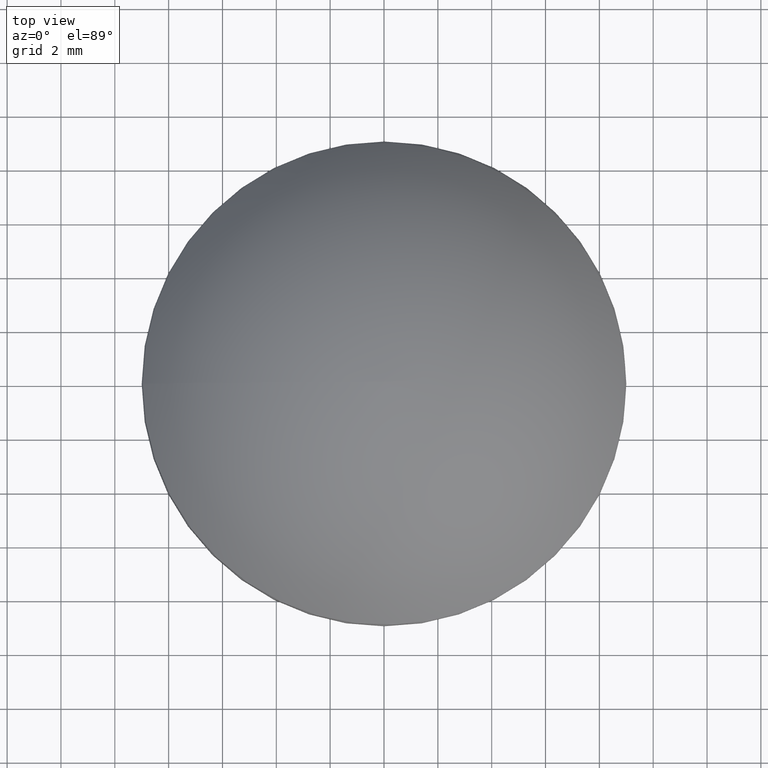
[diagram: clean part render]
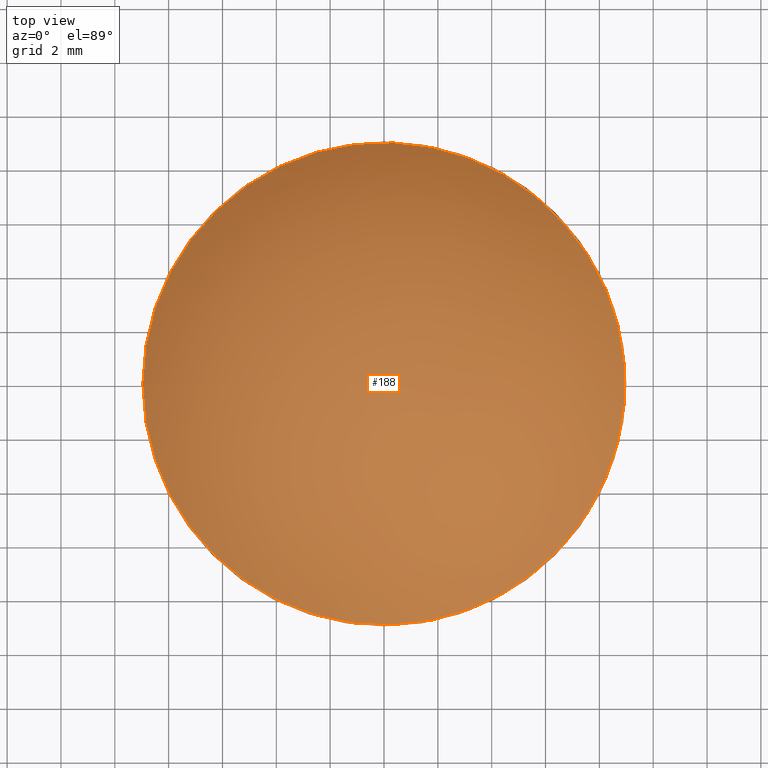
[diagram: same view with one face highlighted and labeled with its STEP entity id]
A machine part, top view. The second image highlights one B-rep face of the part: STEP entity #188.
In plain terms, the highlighted spherical surface has radius 11.5 mm.
Its self-contained STEP definition (entity closure, byte-faithful):
#16=SPHERICAL_SURFACE('',#236,11.5);
#40=FACE_OUTER_BOUND('',#54,.T.);
#54=EDGE_LOOP('',(#155,#156,#157));
#70=CIRCLE('',#230,8.95567978584934);
#75=CIRCLE('',#237,11.5);
#90=VERTEX_POINT('',#349);
#94=VERTEX_POINT('',#361);
#111=EDGE_CURVE('',#90,#90,#70,.T.);
#117=EDGE_CURVE('',#94,#90,#75,.T.);
#155=ORIENTED_EDGE('',*,*,#111,.F.);
#156=ORIENTED_EDGE('',*,*,#117,.F.);
#157=ORIENTED_EDGE('',*,*,#117,.T.);
#188=ADVANCED_FACE('',(#40),#16,.T.);
#230=AXIS2_PLACEMENT_3D('',#350,#284,#285);
#236=AXIS2_PLACEMENT_3D('',#360,#297,#298);
#237=AXIS2_PLACEMENT_3D('',#362,#299,#300);
#284=DIRECTION('center_axis',(0.,0.,-1.));
#285=DIRECTION('ref_axis',(1.,6.12323399573677E-17,0.));
#297=DIRECTION('center_axis',(6.12323399573677E-17,0.,1.));
#298=DIRECTION('ref_axis',(1.,0.,0.));
#299=DIRECTION('center_axis',(1.22464679914735E-16,-1.,0.));
#300=DIRECTION('ref_axis',(-1.,-1.22464679914735E-16,0.));
#349=CARTESIAN_POINT('',(-8.95567978584934,5.48377229196452E-16,7.21427748103229));
#350=CARTESIAN_POINT('Origin',(0.,0.,7.21427748103229));
#360=CARTESIAN_POINT('Origin',(0.,0.,0.));
#361=CARTESIAN_POINT('',(-7.04171909509728E-16,-8.62361875030568E-32,11.5));
#362=CARTESIAN_POINT('Origin',(0.,0.,0.));